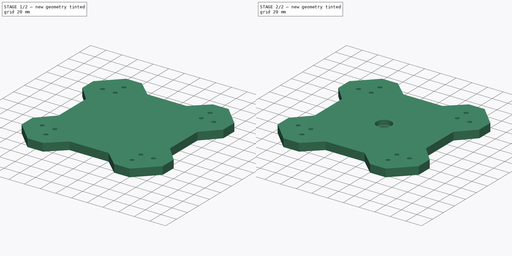
[diagram: build sequence overview — one tinted view per stage of 2, left to right]
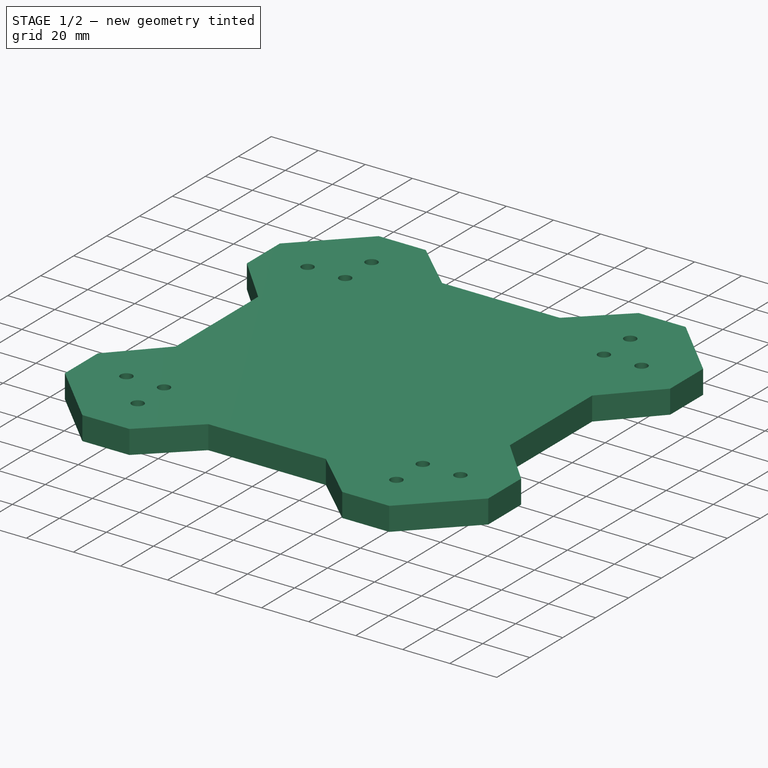
[diagram: stage 1 of 2 — iso view after this stage's code; geometry added in this stage tinted green]
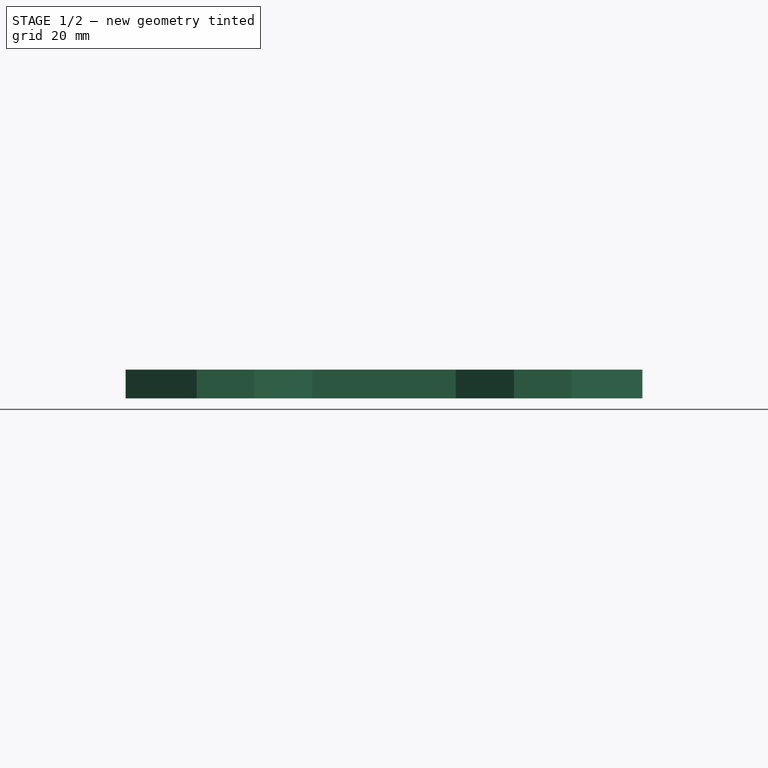
[diagram: stage 1 of 2 — front view after this stage's code; geometry added in this stage tinted green]
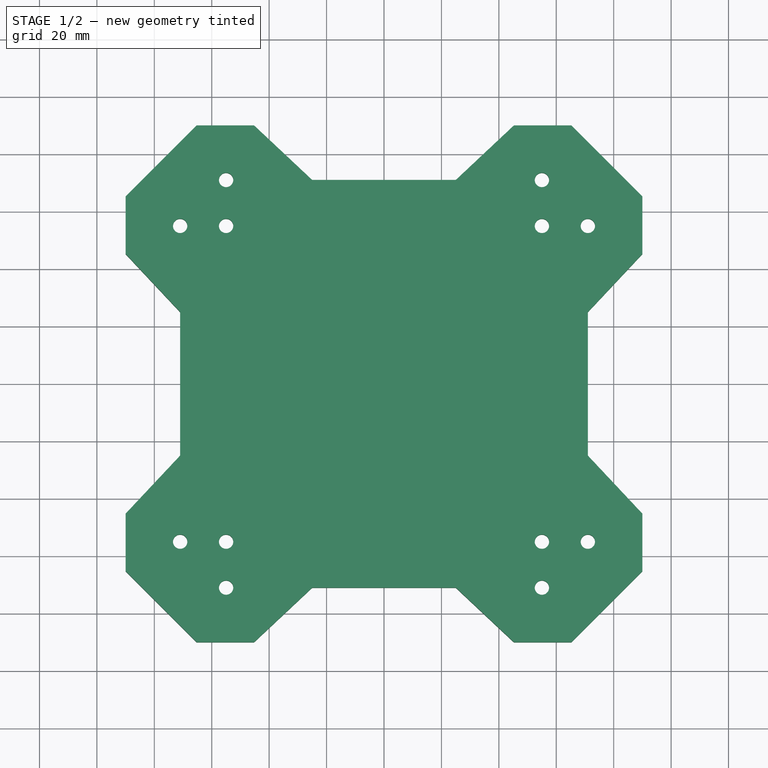
[diagram: stage 1 of 2 — top view after this stage's code; geometry added in this stage tinted green]
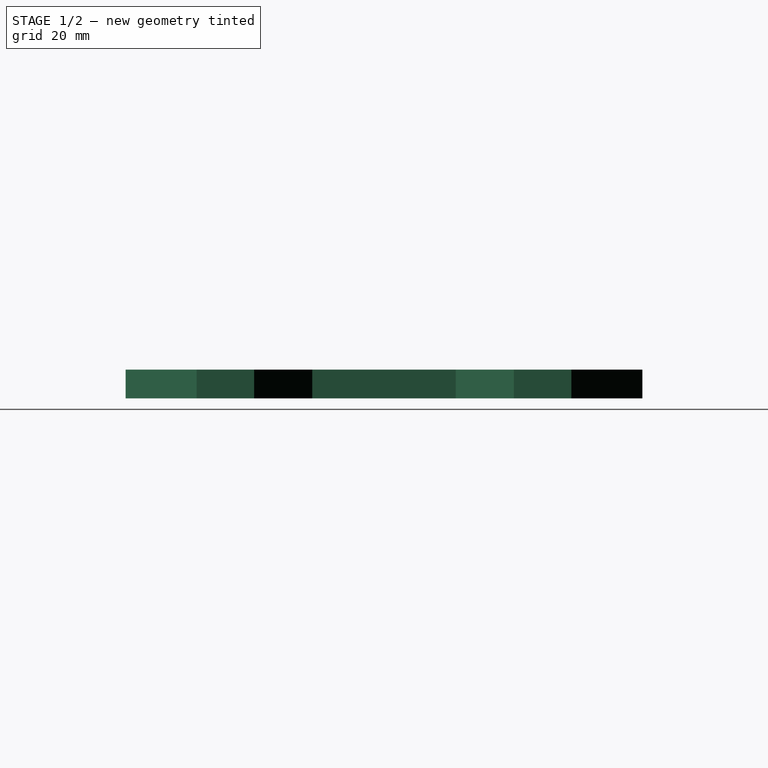
[diagram: stage 1 of 2 — right view after this stage's code; geometry added in this stage tinted green]
FCSTD DOCUMENT  (FreeCAD 0.22R38467 (Git))
Label: Mount
objects: PartDesign::Line×13, Sketcher::SketchObject×2, Part::Extrusion×2, Part::Cut×1, PartDesign::CoordinateSystem×1, App::Part×1
note: 21 computed .brp shape members not serialized (recipe doc carries the construction recipe); baked Part::Feature solids carry a one-line shape summary decoded from their .brp

FEATURE [Sketcher::SketchObject] Sketch  label="Pad Profile"
  ArcFitTolerance = 1e-06
  FullyConstrained = true
  MakeInternals = false
  sketch-geometry (49):
    g0: LineSegment [constr] StartX=-55 StartY=-71 StartZ=0 EndX=55 EndY=-71 EndZ=0
    g1: LineSegment [constr] StartX=55 StartY=-71 StartZ=0 EndX=55 EndY=71 EndZ=0
    g2: LineSegment [constr] StartX=55 StartY=71 StartZ=0 EndX=-55 EndY=71 EndZ=0
    g3: LineSegment [constr] StartX=-55 StartY=71 StartZ=0 EndX=-55 EndY=-71 EndZ=0
    g4: LineSegment [constr] StartX=-71 StartY=55 StartZ=0 EndX=-71 EndY=-55 EndZ=0
    g5: LineSegment [constr] StartX=-71 StartY=-55 StartZ=0 EndX=71 EndY=-55 EndZ=0
    g6: LineSegment [constr] StartX=71 StartY=-55 StartZ=0 EndX=71 EndY=55 EndZ=0
    g7: LineSegment [constr] StartX=71 StartY=55 StartZ=0 EndX=-71 EndY=55 EndZ=0
    g8: LineSegment [constr] StartX=-90 StartY=90 StartZ=0 EndX=-90 EndY=-90 EndZ=0
    g9: LineSegment [constr] StartX=-90 StartY=-90 StartZ=0 EndX=90 EndY=-90 EndZ=0
    g10: LineSegment [constr] StartX=90 StartY=-90 StartZ=0 EndX=90 EndY=90 EndZ=0
    g11: LineSegment [constr] StartX=90 StartY=90 StartZ=0 EndX=-90 EndY=90 EndZ=0
    g12: LineSegment StartX=-90 StartY=65.2513 StartZ=0 EndX=-65.2513 EndY=90 EndZ=0
    g13: LineSegment StartX=65.2513 StartY=90 StartZ=0 EndX=90 EndY=65.2513 EndZ=0
    g14: LineSegment StartX=90 StartY=-65.2513 StartZ=0 EndX=65.2513 EndY=-90 EndZ=0
    g15: LineSegment StartX=-90 StartY=-65.2513 StartZ=0 EndX=-65.2513 EndY=-90 EndZ=0
    g16: LineSegment StartX=-65.2513 StartY=90 StartZ=0 EndX=-45.2513 EndY=90 EndZ=0
    g17: LineSegment StartX=-45.2513 StartY=90 StartZ=0 EndX=-25 EndY=71 EndZ=0
    g18: LineSegment StartX=-25 StartY=71 StartZ=0 EndX=25 EndY=71 EndZ=0
    g19: LineSegment StartX=25 StartY=71 StartZ=0 EndX=45.2513 EndY=90 EndZ=0
    g20: LineSegment StartX=45.2513 StartY=90 StartZ=0 EndX=65.2513 EndY=90 EndZ=0
    g21: LineSegment StartX=90 StartY=65.2513 StartZ=0 EndX=90 EndY=45.2513 EndZ=0
    g22: LineSegment StartX=90 StartY=45.2513 StartZ=0 EndX=71 EndY=25 EndZ=0
    g23: LineSegment StartX=71 StartY=25 StartZ=0 EndX=71 EndY=-25 EndZ=0
    g24: LineSegment StartX=71 StartY=-25 StartZ=0 EndX=90 EndY=-45.2513 EndZ=0
    g25: LineSegment StartX=90 StartY=-45.2513 StartZ=0 EndX=90 EndY=-65.2513 EndZ=0
    g26: LineSegment StartX=-90 StartY=65.2513 StartZ=0 EndX=-90 EndY=45.2513 EndZ=0
    g27: LineSegment StartX=-90 StartY=45.2513 StartZ=0 EndX=-71 EndY=25 EndZ=0
    g28: LineSegment StartX=-71 StartY=25 StartZ=0 EndX=-71 EndY=-25 EndZ=0
    g29: LineSegment StartX=-71 StartY=-25 StartZ=0 EndX=-90 EndY=-45.2513 EndZ=0
    g30: LineSegment StartX=-90 StartY=-45.2513 StartZ=0 EndX=-90 EndY=-65.2513 EndZ=0
    g31: LineSegment StartX=-65.2513 StartY=-90 StartZ=0 EndX=-45.2513 EndY=-90 EndZ=0
    g32: LineSegment StartX=-45.2513 StartY=-90 StartZ=0 EndX=-25 EndY=-71 EndZ=0
    g33: LineSegment StartX=-25 StartY=-71 StartZ=0 EndX=25 EndY=-71 EndZ=0
    g34: LineSegment StartX=25 StartY=-71 StartZ=0 EndX=45.2513 EndY=-90 EndZ=0
    g35: LineSegment StartX=45.2513 StartY=-90 StartZ=0 EndX=65.2513 EndY=-90 EndZ=0
    g36: Circle CenterX=-71 CenterY=55 CenterZ=0 NormalX=0 NormalY=0 NormalZ=1 AngleXU=0 Radius=2.5
    g37: Circle CenterX=-55 CenterY=71 CenterZ=0 NormalX=0 NormalY=0 NormalZ=1 AngleXU=0 Radius=2.5
    g38: Circle CenterX=55 CenterY=71 CenterZ=0 NormalX=0 NormalY=0 NormalZ=1 AngleXU=0 Radius=2.5
    g39: Circle CenterX=71 CenterY=55 CenterZ=0 NormalX=0 NormalY=0 NormalZ=1 AngleXU=0 Radius=2.5
    g40: Circle CenterX=71 CenterY=-55 CenterZ=0 NormalX=0 NormalY=0 NormalZ=1 AngleXU=0 Radius=2.5
    g41: Circle CenterX=55 CenterY=-71 CenterZ=0 NormalX=0 NormalY=0 NormalZ=1 AngleXU=0 Radius=2.5
    g42: Circle CenterX=-55 CenterY=-71 CenterZ=0 NormalX=0 NormalY=0 NormalZ=1 AngleXU=0 Radius=2.5
    g43: Circle CenterX=-71 CenterY=-55 CenterZ=0 NormalX=0 NormalY=0 NormalZ=1 AngleXU=0 Radius=2.5
    g44: Circle CenterX=0 CenterY=0 CenterZ=0 NormalX=0 NormalY=0 NormalZ=1 AngleXU=0 Radius=7.5
    g45: Circle CenterX=-55 CenterY=55 CenterZ=0 NormalX=0 NormalY=0 NormalZ=1 AngleXU=0 Radius=2.5
    g46: Circle CenterX=55 CenterY=55 CenterZ=0 NormalX=0 NormalY=0 NormalZ=1 AngleXU=0 Radius=2.5
    g47: Circle CenterX=55 CenterY=-55 CenterZ=0 NormalX=0 NormalY=0 NormalZ=1 AngleXU=0 Radius=2.5
    g48: Circle CenterX=-55 CenterY=-55 CenterZ=0 NormalX=0 NormalY=0 NormalZ=1 AngleXU=0 Radius=2.5
  constraints (129):
    c: Coincident(g0,g1)
    c: Coincident(g1,g2)
    c: Coincident(g2,g3)
    c: Coincident(g3,g0)
    c: Horizontal(g0)
    c: Vertical(g3)
    c: DistanceY(g1,g1) = 142
    c: Symmetric(g2,g0,g-1)
    c: Equal(g1,g3)
    c: Equal(g2,g0)
    c: DistanceX(g2,g2) = 110
    c: Coincident(g4,g5)
    c: Coincident(g5,g6)
    c: Coincident(g6,g7)
    c: Coincident(g7,g4)
    c: Vertical(g4)
    c: Vertical(g6)
    c: Horizontal(g5)
    c: Horizontal(g7)
    c: Symmetric(g4,g6,g-1)
    c: Equal(g4,g2)
    c: Equal(g5,g1)
    c: Coincident(g8,g9)
    c: Coincident(g9,g10)
    c: Coincident(g10,g11)
    c: Coincident(g11,g8)
    c: Vertical(g10)
    c: Horizontal(g9)
    c: Horizontal(g11)
    c: Symmetric(g9,g8,g-1)
    c: Equal(g11,g10)
    c: DistanceX(g11,g11) = 180
    c: PointOnObject(g12,g8)
    c: PointOnObject(g12,g11)
    c: PointOnObject(g13,g11)
    c: PointOnObject(g13,g10)
    c: PointOnObject(g14,g10)
    c: PointOnObject(g14,g9)
    c: PointOnObject(g15,g8)
    c: PointOnObject(g15,g9)
    c: Equal(g12,g13)
    c: Equal(g13,g14)
    c: Equal(g14,g15)
    c: Coincident(g16,g12)
    c: PointOnObject(g16,g11)
    c: Coincident(g17,g16)
    c: PointOnObject(g17,g2)
    c: Coincident(g18,g17)
    c: PointOnObject(g18,g2)
    c: Coincident(g19,g18)
    c: PointOnObject(g19,g11)
    c: Coincident(g20,g19)
    c: Coincident(g20,g13)
    c: Coincident(g21,g13)
    c: PointOnObject(g21,g10)
    c: Coincident(g22,g21)
    c: PointOnObject(g22,g6)
    c: PointOnObject(g23,g6)
    c: Coincident(g24,g23)
    c: PointOnObject(g24,g10)
    c: Coincident(g25,g24)
    c: Coincident(g25,g14)
    c: Coincident(g22,g23)
    c: Coincident(g12,g26)
    c: PointOnObject(g26,g8)
    c: Vertical(g26)
    c: Coincident(g26,g27)
    c: PointOnObject(g27,g4)
    c: Coincident(g27,g28)
    c: PointOnObject(g28,g4)
    c: Coincident(g28,g29)
    c: PointOnObject(g29,g8)
    c: Coincident(g29,g30)
    c: Coincident(g30,g15)
    c: Coincident(g15,g31)
    c: PointOnObject(g31,g9)
    c: Coincident(g31,g32)
    c: PointOnObject(g32,g0)
    c: Coincident(g32,g33)
    c: PointOnObject(g33,g0)
    c: Coincident(g33,g34)
    c: PointOnObject(g34,g9)
    c: Coincident(g34,g35)
    c: Coincident(g35,g14)
    c: Equal(g32,g34)
    c: Equal(g34,g24)
    c: Equal(g24,g22)
    c: Equal(g22,g19)
    c: Equal(g19,g17)
    c: Equal(g17,g27)
    c: Equal(g27,g29)
    c: Equal(g26,g16)
    c: Equal(g16,g20)
    c: Equal(g20,g21)
    c: Equal(g21,g25)
    c: Equal(g25,g35)
    c: Equal(g35,g31)
    c: Equal(g31,g30)
    c: Equal(g23,g18)
    c: Equal(g18,g28)
    c: Equal(g28,g33)
    c: DistanceY(g26,g26) = 20
    c: DistanceY(g28,g28) = 50
    c: Distance(g14) = 35
    c: Coincident(g36,g4)
    c: Coincident(g37,g2)
    c: Coincident(g38,g1)
    c: Coincident(g39,g6)
    c: Coincident(g40,g5)
    c: Coincident(g41,g0)
    c: Coincident(g42,g0)
    c: Coincident(g43,g4)
    c: Equal(g43, g36-g42) x7
    c: Radius(g43) = 2.5
    c: Coincident(g44,g-1)
    c: Diameter(g44) = 15
    c: Angle(g15) = -0.785398
    c: Diameter(g45) = 5
    c: PointOnObject(g45,g7)
    c: PointOnObject(g46,g7)
    c: PointOnObject(g47,g1)
    c: PointOnObject(g48,g5)
    c: PointOnObject(g46,g1)
    c: PointOnObject(g45,g3)
    c: PointOnObject(g48,g3)
    c: PointOnObject(g47,g5)
    c: Equal(g47,g48)
    c: Equal(g48,g45)
    c: Equal(g45,g46)
FEATURE [Part::Extrusion] Extrude
  Base = -> Sketch
  Dir = (0,0,1)
  DirMode = 2
  FaceMakerClass = Part::FaceMakerBullseye
  FaceMakerMode = 3
  LengthFwd = 10
  LengthRev = 0
  Solid = true
  Symmetric = false
FEATURE [PartDesign::Line] HoleAxis_1  label="Y1 AP"
  AttacherType = Attacher::AttachEngineLine
  AttachmentSupport = -> [Extrude]
  Length = 7.04534
  MapMode = 19
  Placement = pos=(-55,-71,0) rot=(0,0,1;0rad)
  ResizeMode = 1
FEATURE [PartDesign::Line] HoleAxis_2  label="Y2 AP"
  AttacherType = Attacher::AttachEngineLine
  AttachmentSupport = -> [Extrude]
  Length = 7.04534
  MapMode = 19
  Placement = pos=(55,-71,0) rot=(0,0,1;0rad)
  ResizeMode = 1
FEATURE [PartDesign::Line] HoleAxis_3  label="Y3 AP"
  AttacherType = Attacher::AttachEngineLine
  AttachmentSupport = -> [Extrude]
  Length = 7.04534
  MapMode = 19
  Placement = pos=(55,71,0) rot=(0,0,1;0rad)
  ResizeMode = 1
FEATURE [PartDesign::Line] HoleAxis_4  label="Y4 AP"
  AttacherType = Attacher::AttachEngineLine
  AttachmentSupport = -> [Extrude]
  Length = 7.04534
  MapMode = 19
  Placement = pos=(-55,71,0) rot=(0,0,1;0rad)
  ResizeMode = 1
FEATURE [PartDesign::Line] HoleAxis_5  label="X1 AP"
  AttacherType = Attacher::AttachEngineLine
  AttachmentSupport = -> [Extrude]
  Length = 7.04534
  MapMode = 19
  Placement = pos=(-71,-55,0) rot=(0,0,1;0rad)
  ResizeMode = 1
FEATURE [PartDesign::Line] HoleAxis_6  label="X2 AP"
  AttacherType = Attacher::AttachEngineLine
  AttachmentSupport = -> [Extrude]
  Length = 7.04534
  MapMode = 19
  Placement = pos=(71,-55,0) rot=(0,0,1;0rad)
  ResizeMode = 1
FEATURE [PartDesign::Line] HoleAxis_7  label="X3 AP"
  AttacherType = Attacher::AttachEngineLine
  AttachmentSupport = -> [Extrude]
  Length = 7.04534
  MapMode = 19
  Placement = pos=(71,55,0) rot=(0,0,1;0rad)
  ResizeMode = 1
FEATURE [PartDesign::Line] HoleAxis_8  label="X4 AP"
  AttacherType = Attacher::AttachEngineLine
  AttachmentSupport = -> [Extrude]
  Length = 7.04534
  MapMode = 19
  Placement = pos=(-71,55,0) rot=(0,0,1;0rad)
  ResizeMode = 1
FEATURE [Sketcher::SketchObject] Sketch001
  ArcFitTolerance = 1e-06
  AttachmentSupport = -> [Extrude]
  FullyConstrained = true
  MakeInternals = false
  MapMode = 5
  Placement = pos=(0,0,10) rot=(0,0,1;0rad)
  sketch-geometry (1):
    g0: Circle CenterX=0 CenterY=0 CenterZ=0 NormalX=0 NormalY=0 NormalZ=1 AngleXU=0 Radius=9.5
  constraints (2):
    c: Diameter(g0) = 19
    c: Coincident(g0,g-1)
FEATURE [Part::Extrusion] Extrude001  label="Bearing Pocket"
  Base = -> Sketch001
  Dir = (0,0,1)
  DirMode = 2
  FaceMakerClass = Part::FaceMakerBullseye
  FaceMakerMode = 3
  LengthFwd = 6
  LengthRev = 0
  Reversed = true
  Solid = true
  Symmetric = false
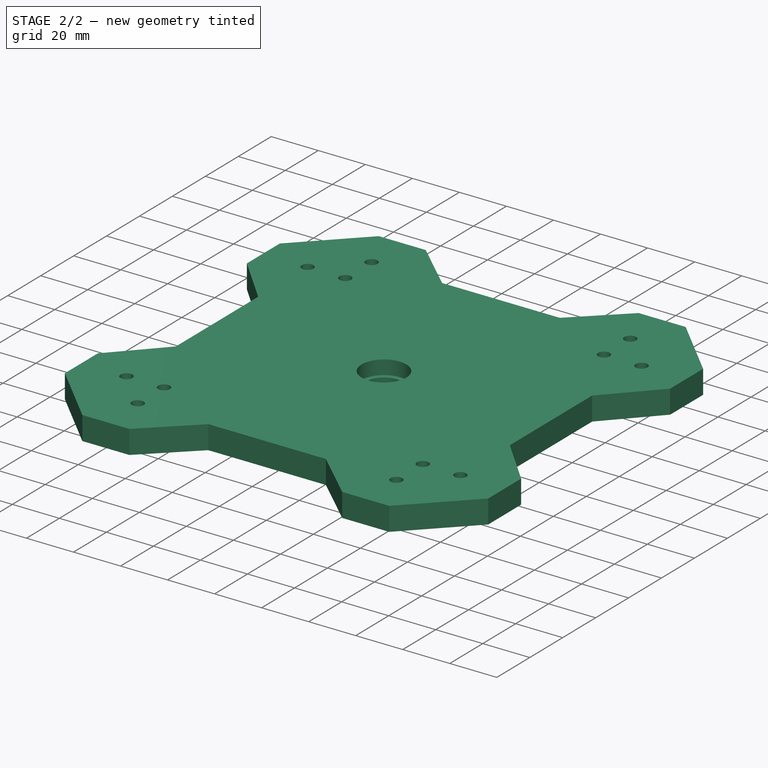
[diagram: stage 2 of 2 — iso view after this stage's code; geometry added in this stage tinted green]
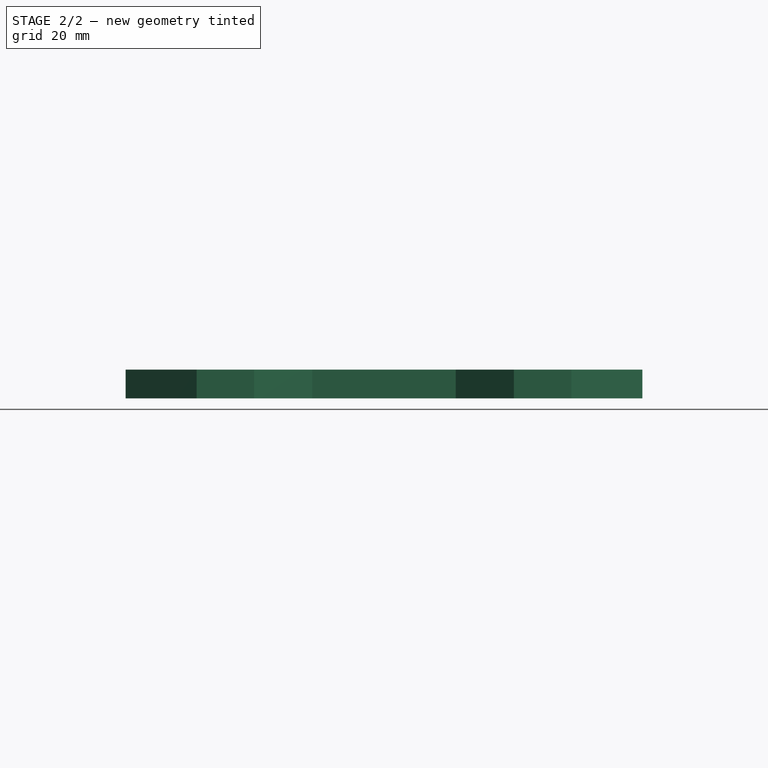
[diagram: stage 2 of 2 — front view after this stage's code; geometry added in this stage tinted green]
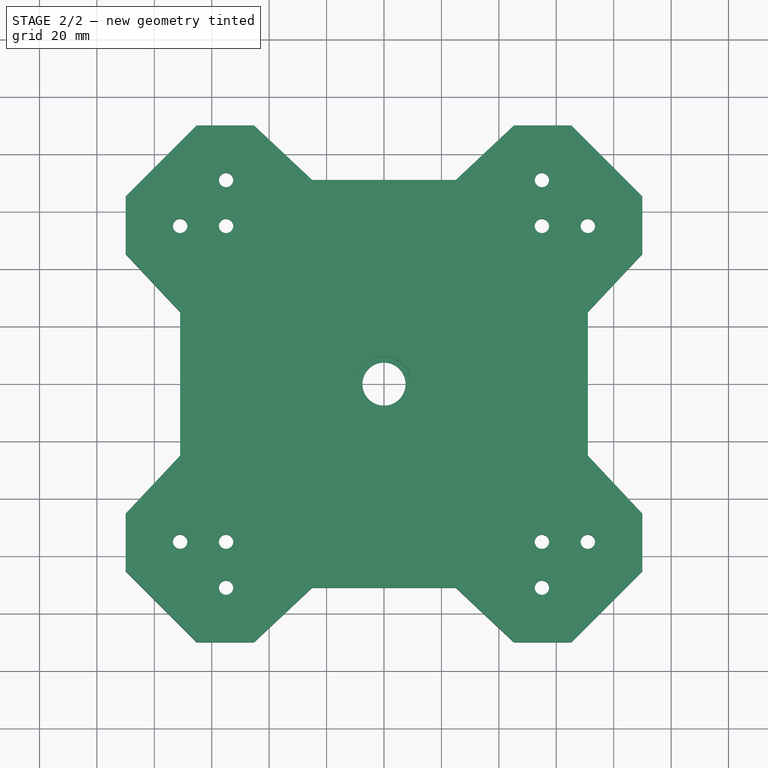
[diagram: stage 2 of 2 — top view after this stage's code; geometry added in this stage tinted green]
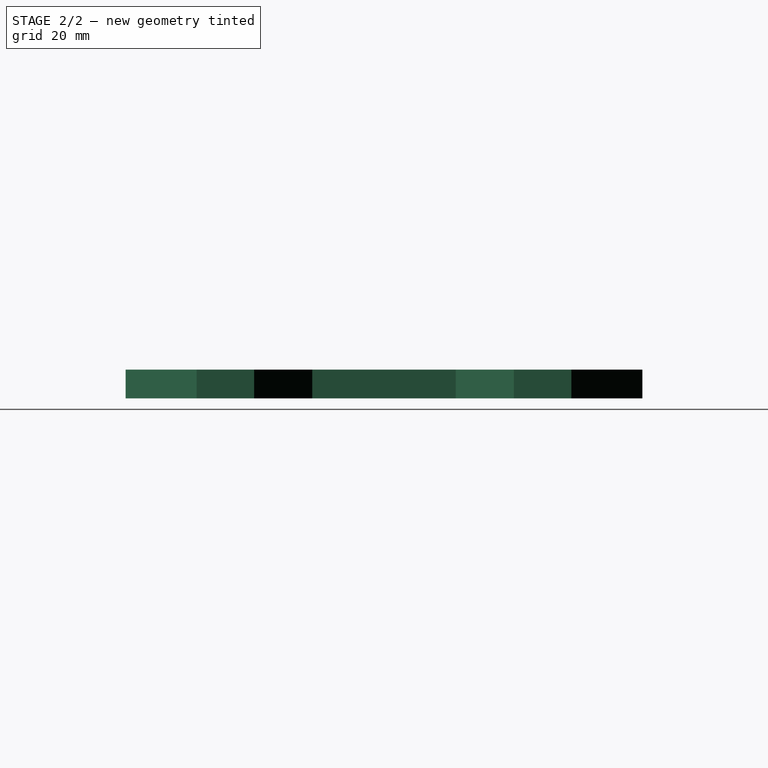
[diagram: stage 2 of 2 — right view after this stage's code; geometry added in this stage tinted green]
FEATURE [Part::Cut] Cut
  Base = -> Extrude
  Tool = -> Extrude001
FEATURE [PartDesign::CoordinateSystem] LCS_Origin  label="Bearing AP"
  AttacherType = Attacher::AttachEngine3D
  AttachmentOffset = pos=(0,0,0) rot=(0,0,1;4.71239rad)
  AttachmentSupport = -> [Cut]
  MapMode = 11
  Placement = pos=(0,0,4) rot=(0,0,1;0rad)
FEATURE [PartDesign::Line] HoleAxis_9  label="Top Bearing AP"
  AttacherType = Attacher::AttachEngineLine
  AttachmentSupport = -> [Cut]
  Length = 26.8295
  MapMode = 19
  Placement = pos=(0,0,4) rot=(0,0,1;0rad)
  ResizeMode = 1
FEATURE [PartDesign::Line] HoleAxis_10  label="Tie Rod1 AP"
  AttacherType = Attacher::AttachEngineLine
  AttachmentSupport = -> [Cut]
  Length = 7.04534
  MapMode = 19
  Placement = pos=(-55,-55,10) rot=(0,0,1;0rad)
  ResizeMode = 1
FEATURE [PartDesign::Line] HoleAxis_11  label="Tie Rod2 AP"
  AttacherType = Attacher::AttachEngineLine
  AttachmentSupport = -> [Cut]
  Length = 7.04534
  MapMode = 19
  Placement = pos=(55,-55,10) rot=(0,0,1;0rad)
  ResizeMode = 1
FEATURE [PartDesign::Line] HoleAxis_12  label="Tie Rod3 AP"
  AttacherType = Attacher::AttachEngineLine
  AttachmentSupport = -> [Cut]
  Length = 7.04534
  MapMode = 19
  Placement = pos=(55,55,10) rot=(0,0,1;0rad)
  ResizeMode = 1
FEATURE [PartDesign::Line] HoleAxis_13  label="Tie Rod4 AP"
  AttacherType = Attacher::AttachEngineLine
  AttachmentSupport = -> [Cut]
  Length = 7.04534
  MapMode = 19
  Placement = pos=(-55,55,10) rot=(0,0,1;0rad)
  ResizeMode = 1
FEATURE [App::Part] Mount
  Group = -> [LCS_Origin,HoleAxis_1,HoleAxis_2,HoleAxis_3,HoleAxis_4,HoleAxis_5,HoleAxis_6,HoleAxis_7,HoleAxis_8,Extrude,Sketch,Sketch001,Extrude001,Cut,HoleAxis_9,HoleAxis_10,HoleAxis_11,HoleAxis_12,HoleAxis_13]
  Origin = -> Origin
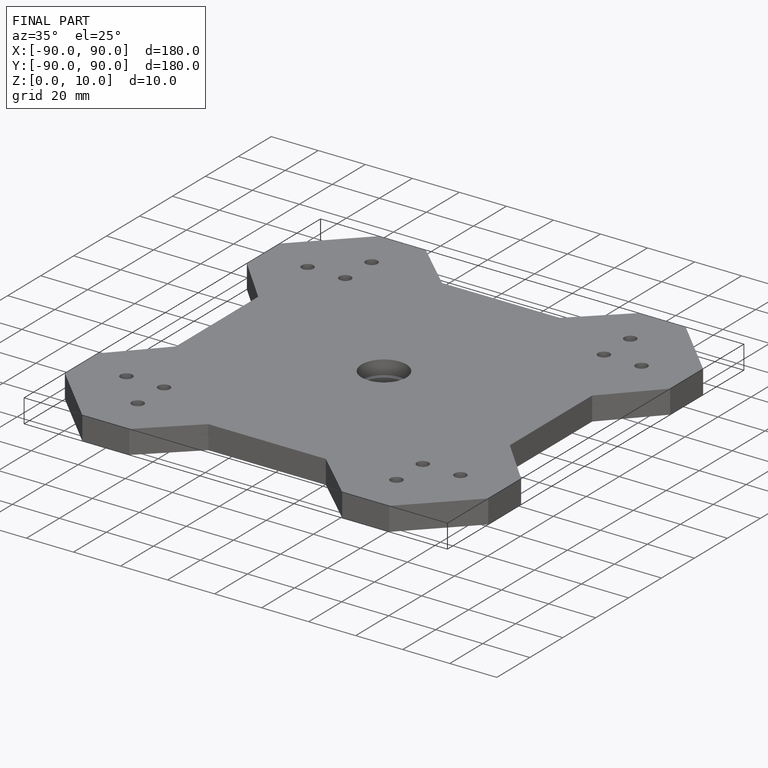
[diagram: finished part — iso view with bounding-box wireframe]
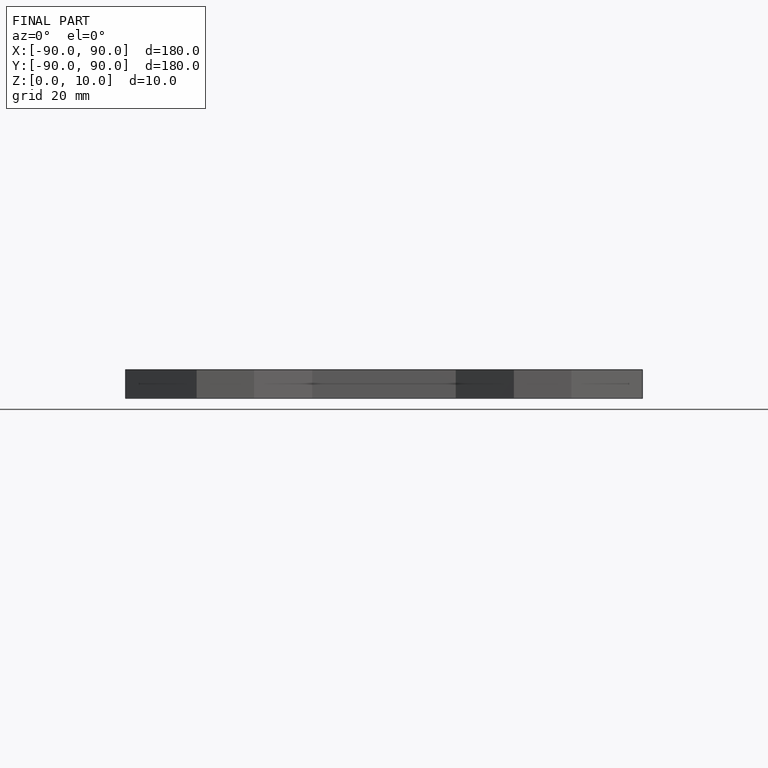
[diagram: finished part — front view with bounding-box wireframe]
